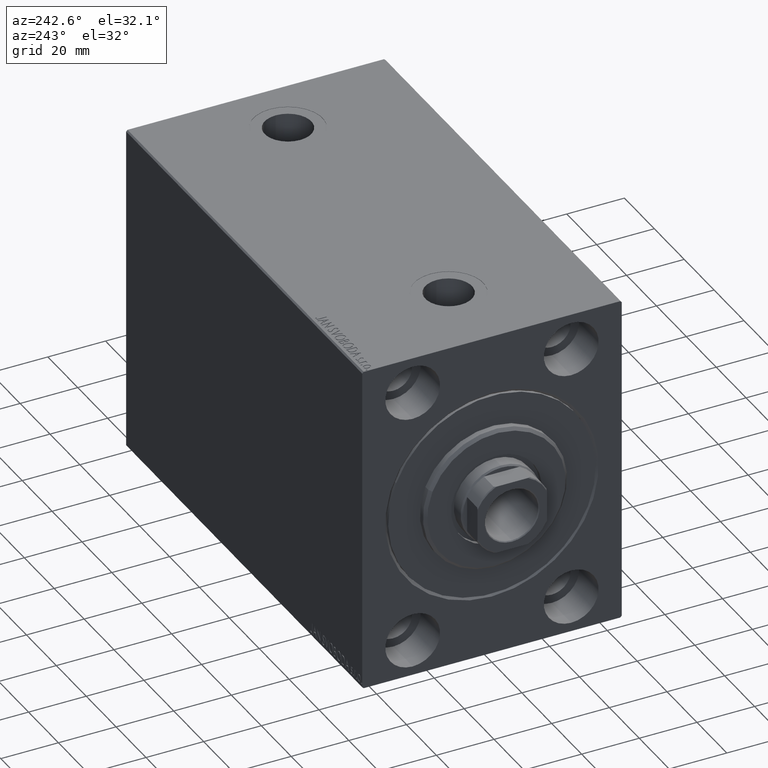
[diagram: clean part render]
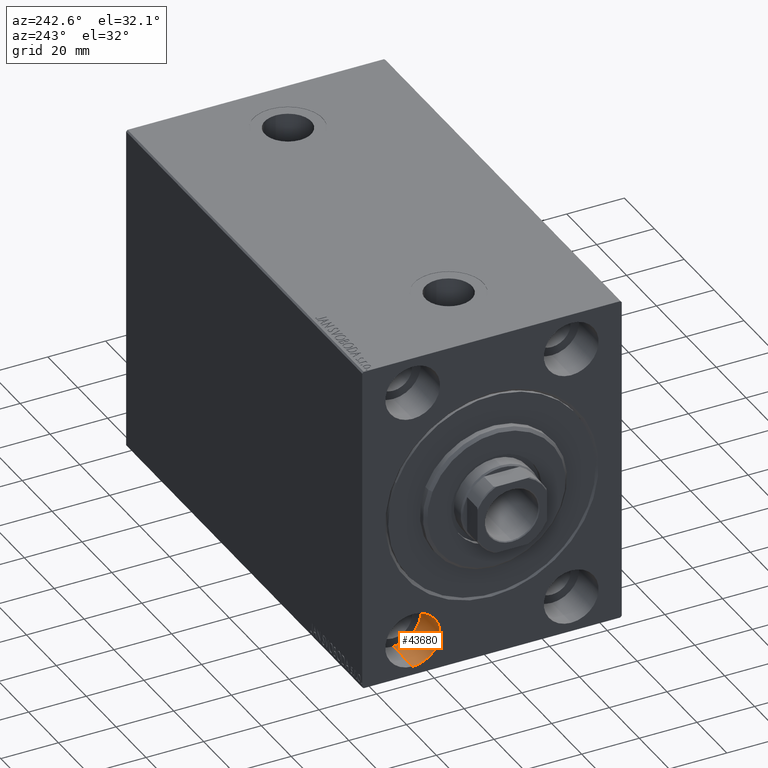
[diagram: same view with one face highlighted and labeled with its STEP entity id]
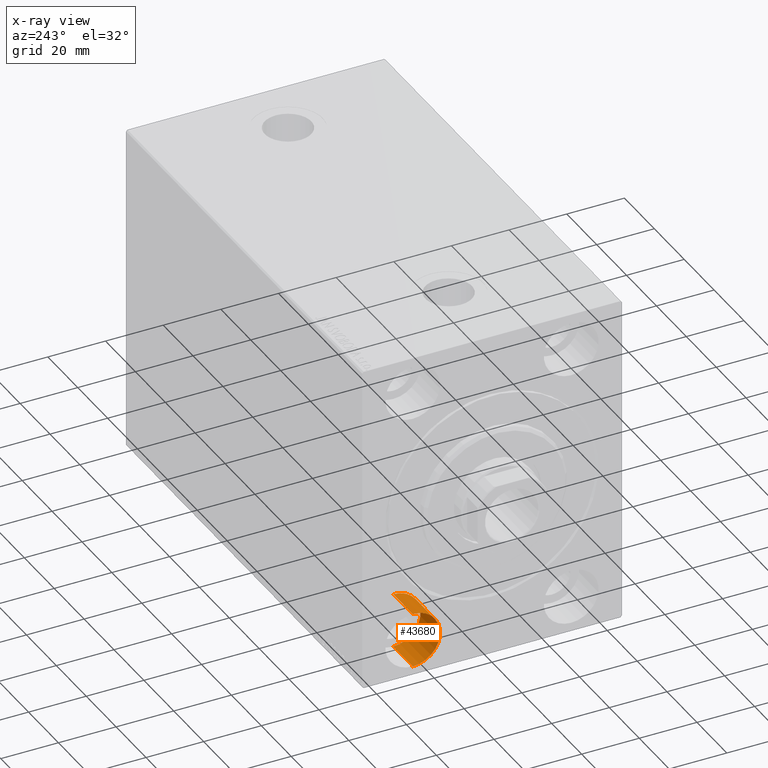
[diagram: x-ray of the same camera — body ghosted, the highlighted face saturated]
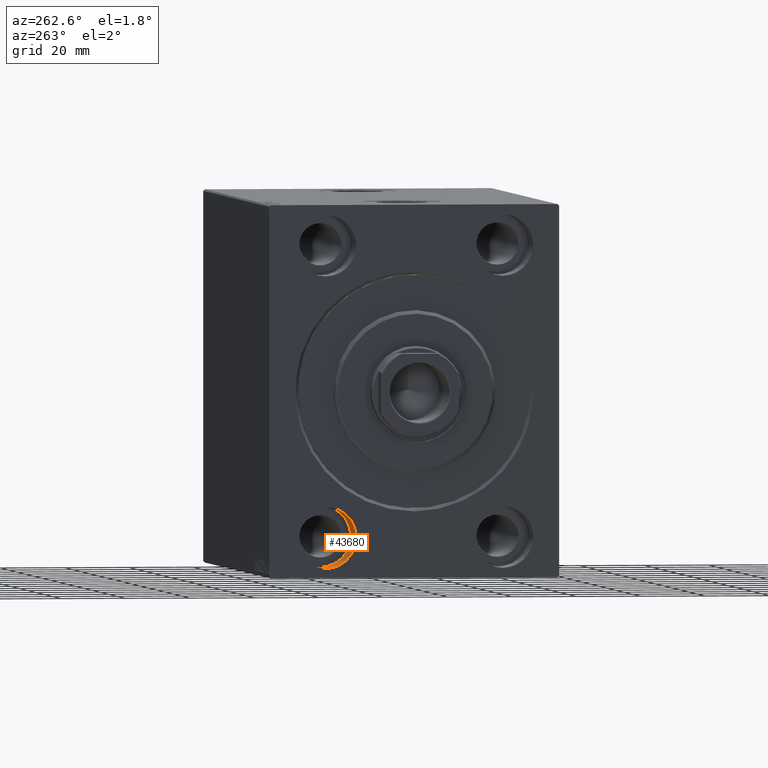
[diagram: same view with one face highlighted and labeled with its STEP entity id]
A machine part, auxiliary view. The second image highlights one B-rep face of the part: STEP entity #43680.
The next image is the same camera in x-ray: the body ghosted, the highlighted face saturated — about 0% of this face is hidden behind the body in this view.
A second angle (auxiliary view) of the same face is appended — the face is thin or edge-on in the first view.
In plain terms, the highlighted cylindrical surface (edge-blend (fillet) strip) has radius 9.5 mm, axis along (-1, -0, -0).
Its self-contained STEP definition (entity closure, byte-faithful):
#2050 = DIRECTION ( 'NONE',  ( 0.000000000000000000, 0.000000000000000000, 1.000000000000000000 ) ) ;
#4296 = EDGE_CURVE ( 'NONE', #22952, #14304, #36661, .T. ) ;
#6130 = CARTESIAN_POINT ( 'NONE',  ( 13.00000000000000000, 27.49999999999998934, -35.49999999999998579 ) ) ;
#7563 = CARTESIAN_POINT ( 'NONE',  ( 0.000000000000000000, 27.49999999999998934, -54.49999999999998579 ) ) ;
#9163 = CYLINDRICAL_SURFACE ( 'NONE', #17809, 9.500000000000001776 ) ;
#9188 = DIRECTION ( 'NONE',  ( -1.000000000000000000, -0.000000000000000000, -0.000000000000000000 ) ) ;
#9534 = EDGE_CURVE ( 'NONE', #40027, #11923, #30325, .T. ) ;
#10086 = ORIENTED_EDGE ( 'NONE', *, *, #35821, .F. ) ;
#10876 = AXIS2_PLACEMENT_3D ( 'NONE', #30172, #13236, #23493 ) ;
#11923 = VERTEX_POINT ( 'NONE', #7563 ) ;
#12425 = ORIENTED_EDGE ( 'NONE', *, *, #9534, .T. ) ;
#13236 = DIRECTION ( 'NONE',  ( -1.000000000000000000, 0.000000000000000000, 0.000000000000000000 ) ) ;
#14304 = VERTEX_POINT ( 'NONE', #32467 ) ;
#14366 = CARTESIAN_POINT ( 'NONE',  ( 13.00000000000000000, 27.49999999999998934, -44.99999999999998579 ) ) ;
#17801 = VECTOR ( 'NONE', #9188, 1000.000000000000000 ) ;
#17809 = AXIS2_PLACEMENT_3D ( 'NONE', #14366, #24613, #2050 ) ;
#18129 = EDGE_CURVE ( 'NONE', #11923, #14304, #22271, .T. ) ;
#19395 = DIRECTION ( 'NONE',  ( -1.000000000000000000, 0.000000000000000000, 0.000000000000000000 ) ) ;
#19634 = EDGE_LOOP ( 'NONE', ( #10086, #12425, #44080, #42409 ) ) ;
#19710 = DIRECTION ( 'NONE',  ( -1.000000000000000000, -0.000000000000000000, -0.000000000000000000 ) ) ;
#19865 = CARTESIAN_POINT ( 'NONE',  ( 13.00000000000000000, 27.49999999999998934, -35.49999999999998579 ) ) ;
#21991 = AXIS2_PLACEMENT_3D ( 'NONE', #43031, #19395, #26710 ) ;
#22271 = CIRCLE ( 'NONE', #10876, 9.500000000000001776 ) ;
#22952 = VERTEX_POINT ( 'NONE', #19865 ) ;
#23493 = DIRECTION ( 'NONE',  ( 0.000000000000000000, 0.000000000000000000, 1.000000000000000000 ) ) ;
#24613 = DIRECTION ( 'NONE',  ( -1.000000000000000000, -0.000000000000000000, -0.000000000000000000 ) ) ;
#25218 = CARTESIAN_POINT ( 'NONE',  ( 13.00000000000000000, 27.49999999999998934, -54.49999999999998579 ) ) ;
#26710 = DIRECTION ( 'NONE',  ( 0.000000000000000000, 0.000000000000000000, 1.000000000000000000 ) ) ;
#30172 = CARTESIAN_POINT ( 'NONE',  ( 0.000000000000000000, 27.49999999999998934, -44.99999999999998579 ) ) ;
#30325 = LINE ( 'NONE', #39732, #17801 ) ;
#31897 = VECTOR ( 'NONE', #19710, 1000.000000000000000 ) ;
#32467 = CARTESIAN_POINT ( 'NONE',  ( 0.000000000000000000, 27.49999999999998934, -35.49999999999998579 ) ) ;
#35821 = EDGE_CURVE ( 'NONE', #40027, #22952, #41214, .T. ) ;
#36661 = LINE ( 'NONE', #6130, #31897 ) ;
#38443 = FACE_OUTER_BOUND ( 'NONE', #19634, .T. ) ;
#39732 = CARTESIAN_POINT ( 'NONE',  ( 13.00000000000000000, 27.49999999999998934, -54.49999999999998579 ) ) ;
#40027 = VERTEX_POINT ( 'NONE', #25218 ) ;
#41214 = CIRCLE ( 'NONE', #21991, 9.500000000000001776 ) ;
#42409 = ORIENTED_EDGE ( 'NONE', *, *, #4296, .F. ) ;
#43031 = CARTESIAN_POINT ( 'NONE',  ( 13.00000000000000000, 27.49999999999998934, -44.99999999999998579 ) ) ;
#43680 = ADVANCED_FACE ( 'NONE', ( #38443 ), #9163, .F. ) ;
#44080 = ORIENTED_EDGE ( 'NONE', *, *, #18129, .T. ) ;